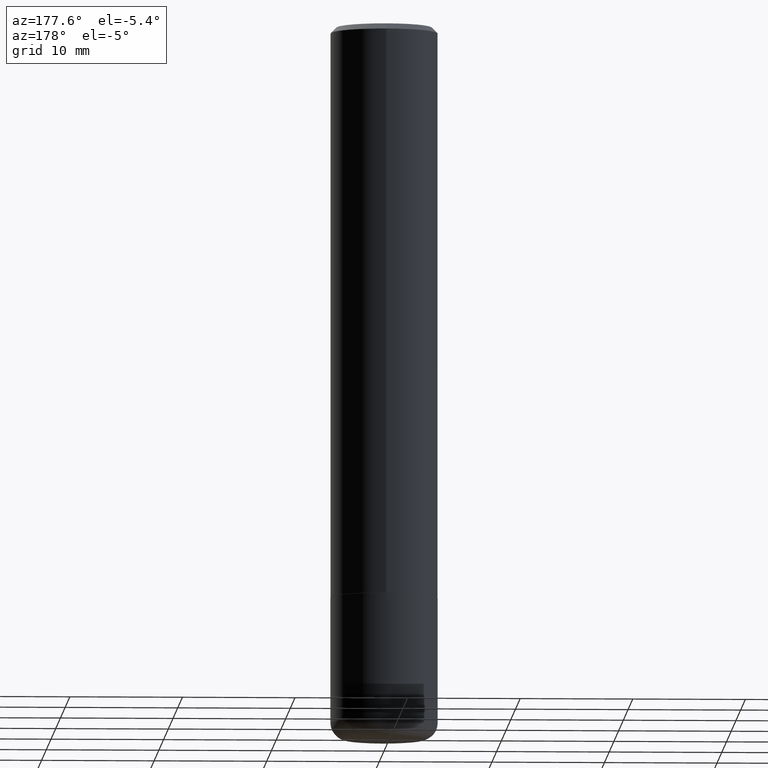
[diagram: clean part render]
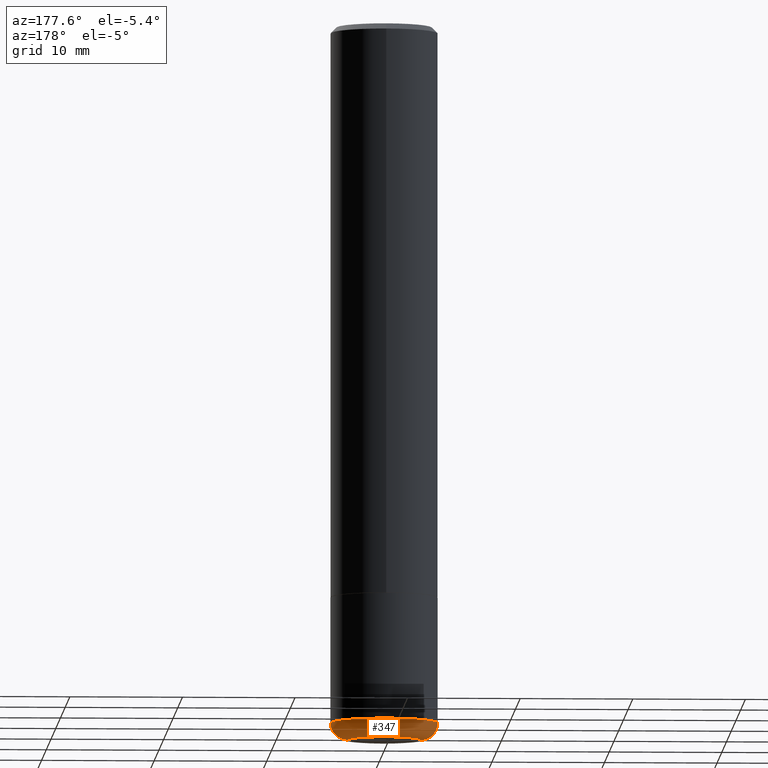
[diagram: same view with one face highlighted and labeled with its STEP entity id]
A machine part, auxiliary view. The second image highlights one B-rep face of the part: STEP entity #347.
In plain terms, the highlighted toroidal blend (fillet) surface has major radius 3.2385 mm and minor (blend) radius 1.524 mm.
Its self-contained STEP definition (entity closure, byte-faithful):
#15 = EDGE_LOOP ( 'NONE', ( #392, #201, #258, #405 ) ) ;
#20 = CARTESIAN_POINT ( 'NONE',  ( 6.113672015462842613E-29, -8.728703347107866520E-15, -2.500000000000000444 ) ) ;
#22 = AXIS2_PLACEMENT_3D ( 'NONE', #82, #53, #341 ) ;
#35 = AXIS2_PLACEMENT_3D ( 'NONE', #254, #409, #124 ) ;
#47 = CIRCLE ( 'NONE', #35, 0.1875000000000000555 ) ;
#53 = DIRECTION ( 'NONE',  ( -2.445468806185136597E-29, 3.491481338843145583E-15, 1.000000000000000000 ) ) ;
#61 = TOROIDAL_SURFACE ( 'NONE', #22, 0.1275000000000000022, 0.06000000000000024758 ) ;
#82 = CARTESIAN_POINT ( 'NONE',  ( 5.966943887091733341E-29, -8.519214466777275048E-15, -2.440000000000000391 ) ) ;
#85 = VERTEX_POINT ( 'NONE', #141 ) ;
#89 = VERTEX_POINT ( 'NONE', #226 ) ;
#90 = DIRECTION ( 'NONE',  ( 1.000000000000000000, -6.982962677686267499E-15, 0.000000000000000000 ) ) ;
#109 = DIRECTION ( 'NONE',  ( -2.445468806185136597E-29, 3.491481338843145583E-15, 1.000000000000000000 ) ) ;
#124 = DIRECTION ( 'NONE',  ( 1.000000000000000000, -6.982962677686260400E-15, 0.000000000000000000 ) ) ;
#136 = CIRCLE ( 'NONE', #235, 0.06000000000000024758 ) ;
#141 = CARTESIAN_POINT ( 'NONE',  ( -0.1275000000000000022, -7.504854098120412392E-15, -2.500000000000000444 ) ) ;
#159 = EDGE_CURVE ( 'NONE', #403, #85, #329, .T. ) ;
#162 = AXIS2_PLACEMENT_3D ( 'NONE', #217, #342, #369 ) ;
#181 = EDGE_CURVE ( 'NONE', #85, #89, #408, .T. ) ;
#186 = AXIS2_PLACEMENT_3D ( 'NONE', #20, #109, #90 ) ;
#190 = EDGE_CURVE ( 'NONE', #403, #318, #136, .T. ) ;
#201 = ORIENTED_EDGE ( 'NONE', *, *, #181, .T. ) ;
#214 = DIRECTION ( 'NONE',  ( -6.982962677686266711E-15, -1.000000000000000000, 3.491481338843145583E-15 ) ) ;
#217 = CARTESIAN_POINT ( 'NONE',  ( -0.1275000000000000022, -7.613272478683147690E-15, -2.440000000000000391 ) ) ;
#220 = CARTESIAN_POINT ( 'NONE',  ( 0.1275000000000000022, -9.619031088512866473E-15, -2.500000000000000444 ) ) ;
#226 = CARTESIAN_POINT ( 'NONE',  ( -0.1875000000000001388, -7.186946837227087200E-15, -2.440000000000000391 ) ) ;
#234 = CARTESIAN_POINT ( 'NONE',  ( 0.1875000000000001388, -9.828519968843450056E-15, -2.440000000000000391 ) ) ;
#235 = AXIS2_PLACEMENT_3D ( 'NONE', #241, #214, #379 ) ;
#241 = CARTESIAN_POINT ( 'NONE',  ( 0.1275000000000000022, -9.409542208182273423E-15, -2.440000000000000391 ) ) ;
#254 = CARTESIAN_POINT ( 'NONE',  ( 5.966943887091733341E-29, -8.519214466777275048E-15, -2.440000000000000391 ) ) ;
#258 = ORIENTED_EDGE ( 'NONE', *, *, #400, .F. ) ;
#318 = VERTEX_POINT ( 'NONE', #234 ) ;
#329 = CIRCLE ( 'NONE', #186, 0.1275000000000000022 ) ;
#341 = DIRECTION ( 'NONE',  ( 1.000000000000000000, -6.982962677686263555E-15, 4.883557194083111780E-29 ) ) ;
#342 = DIRECTION ( 'NONE',  ( 7.105427357601001859E-15, 1.000000000000000000, -3.491481338843145583E-15 ) ) ;
#347 = ADVANCED_FACE ( 'NONE', ( #375 ), #61, .T. ) ;
#369 = DIRECTION ( 'NONE',  ( -1.000000000000000000, 7.105427357600993970E-15, 0.000000000000000000 ) ) ;
#375 = FACE_OUTER_BOUND ( 'NONE', #15, .T. ) ;
#379 = DIRECTION ( 'NONE',  ( 1.000000000000000000, -6.982962677686271444E-15, 0.000000000000000000 ) ) ;
#392 = ORIENTED_EDGE ( 'NONE', *, *, #159, .T. ) ;
#400 = EDGE_CURVE ( 'NONE', #318, #89, #47, .T. ) ;
#403 = VERTEX_POINT ( 'NONE', #220 ) ;
#405 = ORIENTED_EDGE ( 'NONE', *, *, #190, .F. ) ;
#408 = CIRCLE ( 'NONE', #162, 0.06000000000000024758 ) ;
#409 = DIRECTION ( 'NONE',  ( -2.445468806185136597E-29, 3.491481338843145583E-15, 1.000000000000000000 ) ) ;